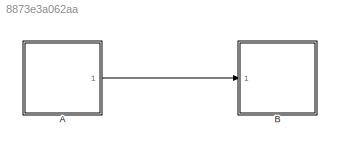
MODEL slx_8873e3a062aa
KIND model
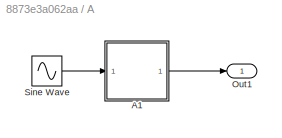
BLOCK [SubSystem] A
  Ports = [0, 1]
  RequestExecContextInheritance = off
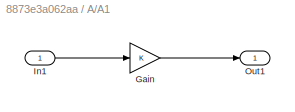
BLOCK [SubSystem] A/A1
  Ports = [1, 1]
  RequestExecContextInheritance = off
BLOCK [Gain] A/A1/Gain
  OutDataTypeStr = Inherit: Inherit via internal rule
  ParamDataTypeStr = Inherit: Inherit via internal rule
  SaturateOnIntegerOverflow = off
BLOCK [Inport] A/A1/In1
  IconDisplay = Port number
BLOCK [Outport] A/A1/Out1
  IconDisplay = Port number
BLOCK [Outport] A/Out1
  IconDisplay = Port number
BLOCK [Sin] A/Sine Wave
  Ports = [0, 1]
  SampleTime = 0
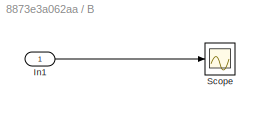
BLOCK [SubSystem] B
  Ports = [1]
  RequestExecContextInheritance = off
  Tag = monitoring
BLOCK [Inport] B/In1
  IconDisplay = Port number
BLOCK [Scope] B/Scope
  DataFormat = StructureWithTime
  Floating = off
  NumInputPorts = 1
  Ports = [1]
  SampleTime = 0
  ShowLegends = off
LINE A/A1/Gain:1 -> A/A1/Out1:1
LINE A/A1/In1:1 -> A/A1/Gain:1
LINE A/A1:1 -> A/Out1:1
LINE A/Sine Wave:1 -> A/A1:1
LINE A:1 -> B:1
LINE B/In1:1 -> B/Scope:1
